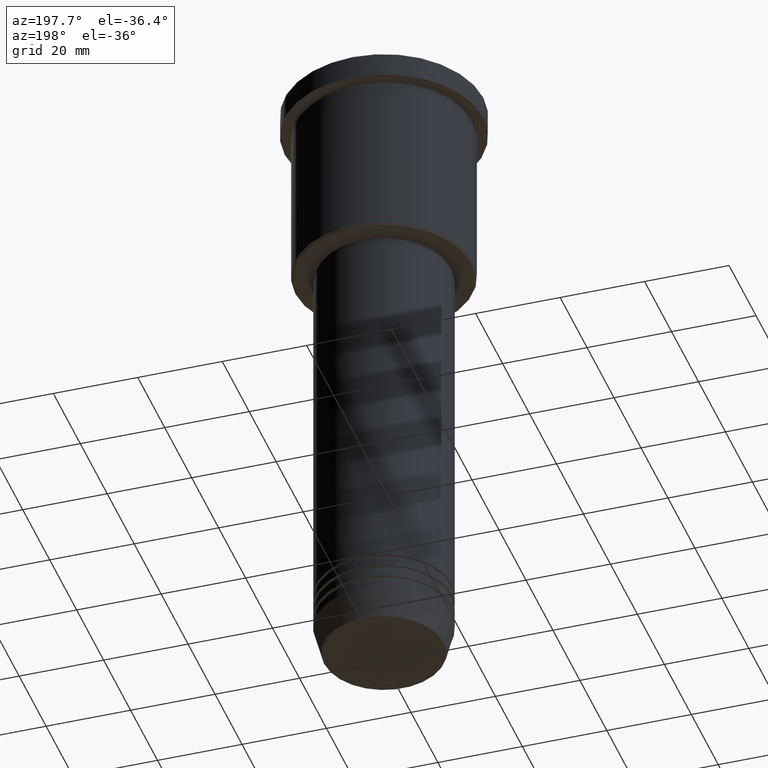
[diagram: clean part render]
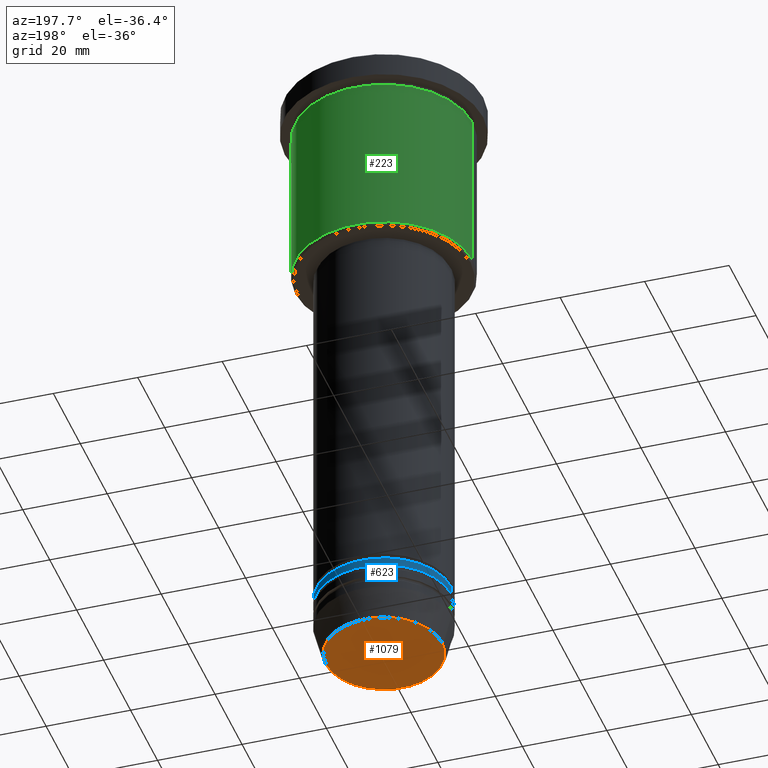
[diagram: same view with three faces highlighted in distinct colors, each labeled with its STEP entity id]
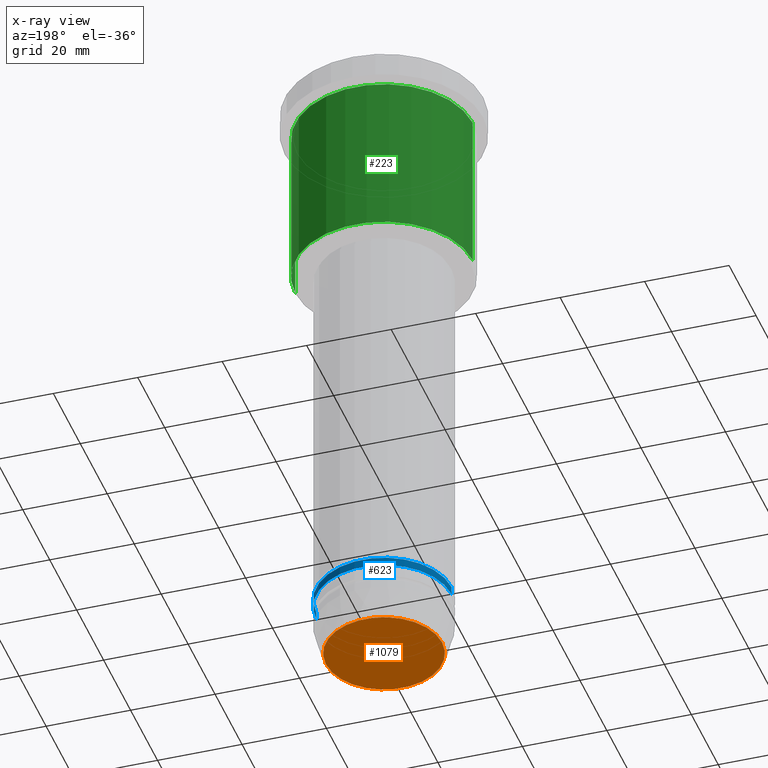
[diagram: x-ray of the same camera — body ghosted, the three highlighted faces saturated]
A machine part, auxiliary view with three faces highlighted in distinct colors.
The next image is the same camera in x-ray (body ghosted, the three faces saturated) — at least one of them is partly hidden behind the body in this view.
Their STEP definitions:

[orange] entity #1079 — the highlighted planar face has unit normal (0, -0, 1).
#11 = CARTESIAN_POINT ( 'NONE',  ( 0.000000000000000000, 0.000000000000000000, -150.9999999999999716 ) ) ;
#106 = EDGE_CURVE ( 'NONE', #924, #1159, #125, .T. ) ;
#125 = CIRCLE ( 'NONE', #564, 13.74069215899266894 ) ;
#197 = AXIS2_PLACEMENT_3D ( 'NONE', #461, #931, #202 ) ;
#202 = DIRECTION ( 'NONE',  ( 1.000000000000000000, 0.000000000000000000, 0.000000000000000000 ) ) ;
#270 = CARTESIAN_POINT ( 'NONE',  ( 0.000000000000000000, 0.000000000000000000, -150.9999999999999716 ) ) ;
#271 = CARTESIAN_POINT ( 'NONE',  ( 13.74069215899266894, 0.000000000000000000, -150.9999999999999716 ) ) ;
#330 = ORIENTED_EDGE ( 'NONE', *, *, #691, .T. ) ;
#442 = DIRECTION ( 'NONE',  ( 1.000000000000000000, 0.000000000000000000, 0.000000000000000000 ) ) ;
#461 = CARTESIAN_POINT ( 'NONE',  ( 0.000000000000000000, 0.000000000000000000, -150.9999999999999716 ) ) ;
#481 = DIRECTION ( 'NONE',  ( 1.000000000000000000, 0.000000000000000000, 0.000000000000000000 ) ) ;
#491 = ORIENTED_EDGE ( 'NONE', *, *, #106, .T. ) ;
#564 = AXIS2_PLACEMENT_3D ( 'NONE', #270, #821, #442 ) ;
#643 = PLANE ( 'NONE',  #197 ) ;
#691 = EDGE_CURVE ( 'NONE', #1159, #924, #947, .T. ) ;
#743 = FACE_OUTER_BOUND ( 'NONE', #1125, .T. ) ;
#759 = DIRECTION ( 'NONE',  ( 0.000000000000000000, 0.000000000000000000, -1.000000000000000000 ) ) ;
#821 = DIRECTION ( 'NONE',  ( 0.000000000000000000, 0.000000000000000000, -1.000000000000000000 ) ) ;
#924 = VERTEX_POINT ( 'NONE', #271 ) ;
#931 = DIRECTION ( 'NONE',  ( 0.000000000000000000, -0.000000000000000000, 1.000000000000000000 ) ) ;
#947 = CIRCLE ( 'NONE', #979, 13.74069215899266894 ) ;
#979 = AXIS2_PLACEMENT_3D ( 'NONE', #11, #759, #481 ) ;
#1079 = ADVANCED_FACE ( 'NONE', ( #743 ), #643, .F. ) ;
#1110 = CARTESIAN_POINT ( 'NONE',  ( -13.74069215899266894, 1.712322416342417563E-15, -150.9999999999999716 ) ) ;
#1125 = EDGE_LOOP ( 'NONE', ( #491, #330 ) ) ;
#1159 = VERTEX_POINT ( 'NONE', #1110 ) ;

[blue] entity #623 — the highlighted cylindrical surface (partial cylindrical patch) has radius 16 mm, axis along (-0, -0, 1).
#18 = FACE_OUTER_BOUND ( 'NONE', #866, .T. ) ;
#24 = DIRECTION ( 'NONE',  ( 1.000000000000000000, 0.000000000000000000, 0.000000000000000000 ) ) ;
#36 = VERTEX_POINT ( 'NONE', #617 ) ;
#40 = CYLINDRICAL_SURFACE ( 'NONE', #1113, 16.00000000000000000 ) ;
#87 = LINE ( 'NONE', #556, #217 ) ;
#102 = CIRCLE ( 'NONE', #350, 16.00000000000000000 ) ;
#144 = EDGE_CURVE ( 'NONE', #299, #36, #413, .T. ) ;
#175 = CARTESIAN_POINT ( 'NONE',  ( 0.000000000000000000, 0.000000000000000000, -137.9999999999999432 ) ) ;
#217 = VECTOR ( 'NONE', #822, 1000.000000000000000 ) ;
#233 = CARTESIAN_POINT ( 'NONE',  ( 16.00000000000000000, 0.000000000000000000, -135.9999999999999432 ) ) ;
#267 = ORIENTED_EDGE ( 'NONE', *, *, #472, .T. ) ;
#291 = DIRECTION ( 'NONE',  ( -0.000000000000000000, -0.000000000000000000, 1.000000000000000000 ) ) ;
#299 = VERTEX_POINT ( 'NONE', #1183 ) ;
#350 = AXIS2_PLACEMENT_3D ( 'NONE', #1178, #816, #1158 ) ;
#378 = ORIENTED_EDGE ( 'NONE', *, *, #899, .F. ) ;
#413 = CIRCLE ( 'NONE', #813, 16.00000000000000000 ) ;
#472 = EDGE_CURVE ( 'NONE', #36, #1001, #87, .T. ) ;
#480 = CARTESIAN_POINT ( 'NONE',  ( 0.000000000000000000, 0.000000000000000000, 0.000000000000000000 ) ) ;
#535 = DIRECTION ( 'NONE',  ( -0.000000000000000000, -0.000000000000000000, 1.000000000000000000 ) ) ;
#556 = CARTESIAN_POINT ( 'NONE',  ( -16.00000000000000000, 1.959434878635765131E-15, 0.000000000000000000 ) ) ;
#617 = CARTESIAN_POINT ( 'NONE',  ( -16.00000000000000000, 1.959434878635765131E-15, -137.9999999999999432 ) ) ;
#623 = ADVANCED_FACE ( 'NONE', ( #18 ), #40, .T. ) ;
#644 = VERTEX_POINT ( 'NONE', #233 ) ;
#649 = LINE ( 'NONE', #705, #852 ) ;
#670 = DIRECTION ( 'NONE',  ( -0.000000000000000000, -0.000000000000000000, 1.000000000000000000 ) ) ;
#705 = CARTESIAN_POINT ( 'NONE',  ( 16.00000000000000000, 0.000000000000000000, 0.000000000000000000 ) ) ;
#802 = EDGE_CURVE ( 'NONE', #299, #644, #649, .T. ) ;
#813 = AXIS2_PLACEMENT_3D ( 'NONE', #175, #535, #1089 ) ;
#816 = DIRECTION ( 'NONE',  ( -0.000000000000000000, -0.000000000000000000, 1.000000000000000000 ) ) ;
#822 = DIRECTION ( 'NONE',  ( -0.000000000000000000, -0.000000000000000000, 1.000000000000000000 ) ) ;
#823 = CARTESIAN_POINT ( 'NONE',  ( -16.00000000000000000, 1.959434878635765131E-15, -135.9999999999999432 ) ) ;
#852 = VECTOR ( 'NONE', #670, 1000.000000000000000 ) ;
#866 = EDGE_LOOP ( 'NONE', ( #1028, #267, #378, #1081 ) ) ;
#899 = EDGE_CURVE ( 'NONE', #644, #1001, #102, .T. ) ;
#1001 = VERTEX_POINT ( 'NONE', #823 ) ;
#1028 = ORIENTED_EDGE ( 'NONE', *, *, #144, .T. ) ;
#1081 = ORIENTED_EDGE ( 'NONE', *, *, #802, .F. ) ;
#1089 = DIRECTION ( 'NONE',  ( 1.000000000000000000, 0.000000000000000000, 0.000000000000000000 ) ) ;
#1113 = AXIS2_PLACEMENT_3D ( 'NONE', #480, #291, #24 ) ;
#1158 = DIRECTION ( 'NONE',  ( 1.000000000000000000, 0.000000000000000000, 0.000000000000000000 ) ) ;
#1178 = CARTESIAN_POINT ( 'NONE',  ( 0.000000000000000000, 0.000000000000000000, -135.9999999999999432 ) ) ;
#1183 = CARTESIAN_POINT ( 'NONE',  ( 16.00000000000000000, 0.000000000000000000, -137.9999999999999432 ) ) ;

[green] entity #223 — the highlighted cylindrical surface (partial cylindrical patch) has radius 21 mm, axis along (-0, -0, 1).
#74 = DIRECTION ( 'NONE',  ( -0.000000000000000000, -0.000000000000000000, 1.000000000000000000 ) ) ;
#177 = DIRECTION ( 'NONE',  ( -0.000000000000000000, -0.000000000000000000, 1.000000000000000000 ) ) ;
#178 = VECTOR ( 'NONE', #1077, 1000.000000000000000 ) ;
#223 = ADVANCED_FACE ( 'NONE', ( #1064 ), #1160, .T. ) ;
#244 = ORIENTED_EDGE ( 'NONE', *, *, #676, .F. ) ;
#278 = CARTESIAN_POINT ( 'NONE',  ( -21.00000000000000000, 2.571758278209441661E-15, -45.50000000000001421 ) ) ;
#283 = CARTESIAN_POINT ( 'NONE',  ( 21.00000000000000000, 0.000000000000000000, -6.999999999999994671 ) ) ;
#302 = CARTESIAN_POINT ( 'NONE',  ( 0.000000000000000000, 0.000000000000000000, -6.999999999999994671 ) ) ;
#348 = CARTESIAN_POINT ( 'NONE',  ( 0.000000000000000000, 0.000000000000000000, 0.000000000000000000 ) ) ;
#380 = ORIENTED_EDGE ( 'NONE', *, *, #862, .F. ) ;
#412 = CIRCLE ( 'NONE', #486, 21.00000000000000000 ) ;
#486 = AXIS2_PLACEMENT_3D ( 'NONE', #711, #177, #1070 ) ;
#500 = VERTEX_POINT ( 'NONE', #278 ) ;
#505 = AXIS2_PLACEMENT_3D ( 'NONE', #302, #625, #533 ) ;
#533 = DIRECTION ( 'NONE',  ( 1.000000000000000000, 0.000000000000000000, 0.000000000000000000 ) ) ;
#540 = DIRECTION ( 'NONE',  ( 1.000000000000000000, 0.000000000000000000, 0.000000000000000000 ) ) ;
#576 = VERTEX_POINT ( 'NONE', #283 ) ;
#625 = DIRECTION ( 'NONE',  ( -0.000000000000000000, -0.000000000000000000, 1.000000000000000000 ) ) ;
#648 = CARTESIAN_POINT ( 'NONE',  ( 21.00000000000000000, 0.000000000000000000, 0.000000000000000000 ) ) ;
#672 = LINE ( 'NONE', #648, #991 ) ;
#676 = EDGE_CURVE ( 'NONE', #576, #1046, #808, .T. ) ;
#711 = CARTESIAN_POINT ( 'NONE',  ( 0.000000000000000000, 0.000000000000000000, -45.50000000000001421 ) ) ;
#749 = EDGE_CURVE ( 'NONE', #500, #1046, #766, .T. ) ;
#766 = LINE ( 'NONE', #954, #178 ) ;
#779 = AXIS2_PLACEMENT_3D ( 'NONE', #348, #74, #540 ) ;
#807 = CARTESIAN_POINT ( 'NONE',  ( 21.00000000000000000, 0.000000000000000000, -45.50000000000001421 ) ) ;
#808 = CIRCLE ( 'NONE', #505, 21.00000000000000000 ) ;
#862 = EDGE_CURVE ( 'NONE', #921, #576, #672, .T. ) ;
#921 = VERTEX_POINT ( 'NONE', #807 ) ;
#954 = CARTESIAN_POINT ( 'NONE',  ( -21.00000000000000000, 2.571758278209441661E-15, 0.000000000000000000 ) ) ;
#991 = VECTOR ( 'NONE', #1149, 1000.000000000000000 ) ;
#1011 = CARTESIAN_POINT ( 'NONE',  ( -21.00000000000000000, 2.571758278209441661E-15, -6.999999999999994671 ) ) ;
#1020 = EDGE_CURVE ( 'NONE', #921, #500, #412, .T. ) ;
#1038 = ORIENTED_EDGE ( 'NONE', *, *, #1020, .T. ) ;
#1046 = VERTEX_POINT ( 'NONE', #1011 ) ;
#1057 = EDGE_LOOP ( 'NONE', ( #1038, #1059, #244, #380 ) ) ;
#1059 = ORIENTED_EDGE ( 'NONE', *, *, #749, .T. ) ;
#1064 = FACE_OUTER_BOUND ( 'NONE', #1057, .T. ) ;
#1070 = DIRECTION ( 'NONE',  ( -1.000000000000000000, 0.000000000000000000, 0.000000000000000000 ) ) ;
#1077 = DIRECTION ( 'NONE',  ( -0.000000000000000000, -0.000000000000000000, 1.000000000000000000 ) ) ;
#1149 = DIRECTION ( 'NONE',  ( -0.000000000000000000, -0.000000000000000000, 1.000000000000000000 ) ) ;
#1160 = CYLINDRICAL_SURFACE ( 'NONE', #779, 21.00000000000000000 ) ;